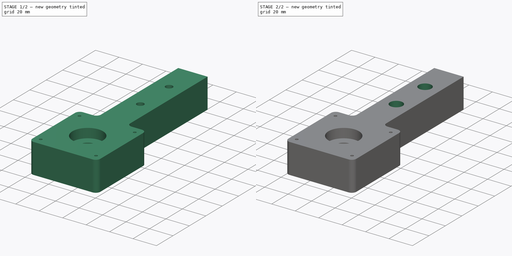
[diagram: build sequence overview — one tinted view per stage of 2, left to right]
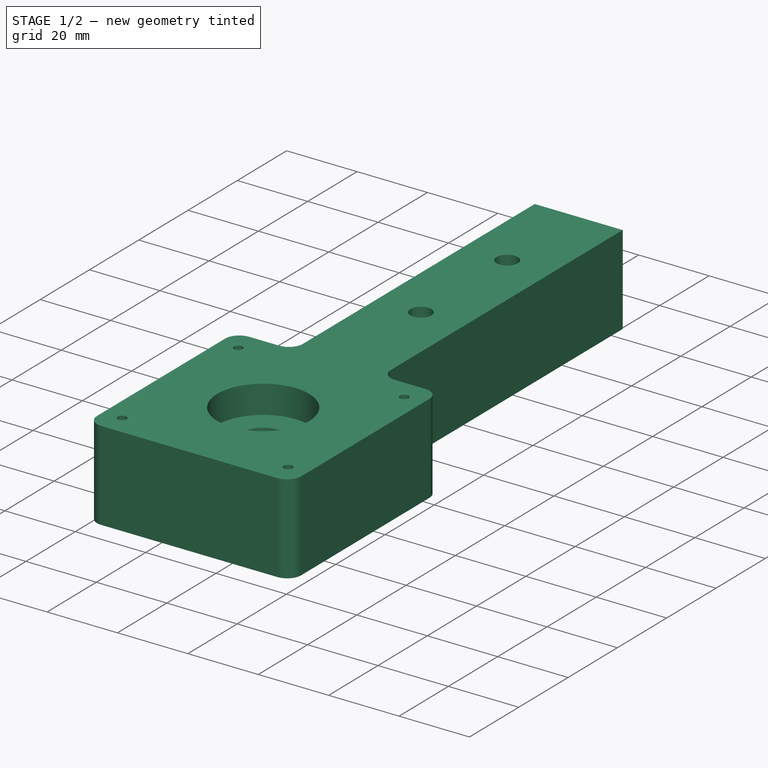
[diagram: stage 1 of 2 — iso view after this stage's code; geometry added in this stage tinted green]
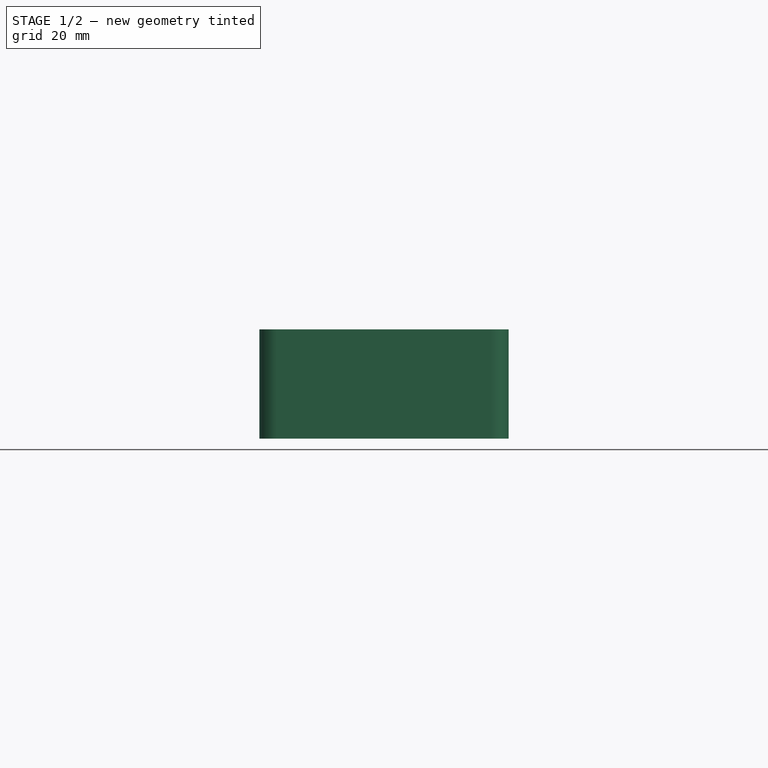
[diagram: stage 1 of 2 — front view after this stage's code; geometry added in this stage tinted green]
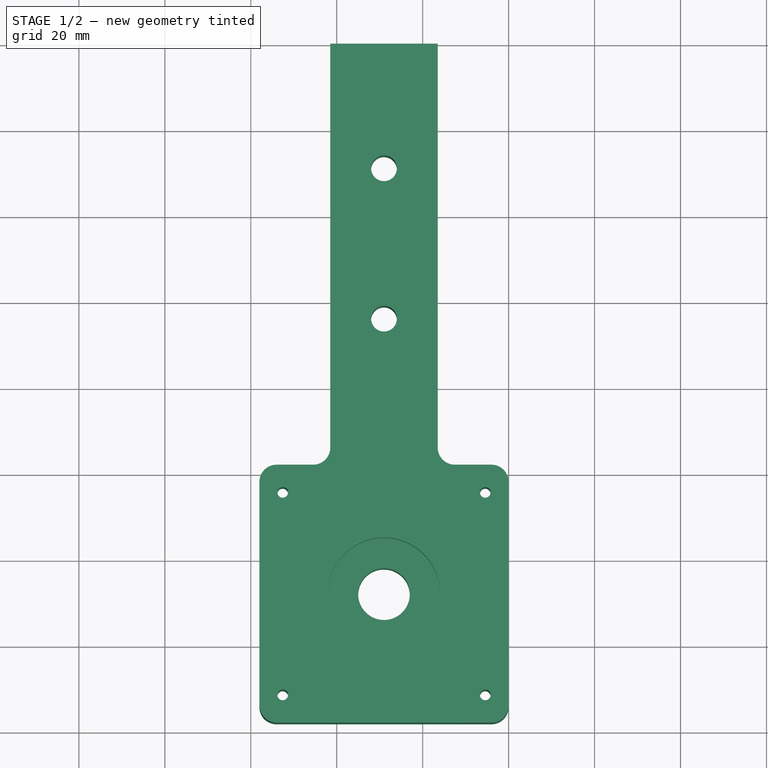
[diagram: stage 1 of 2 — top view after this stage's code; geometry added in this stage tinted green]
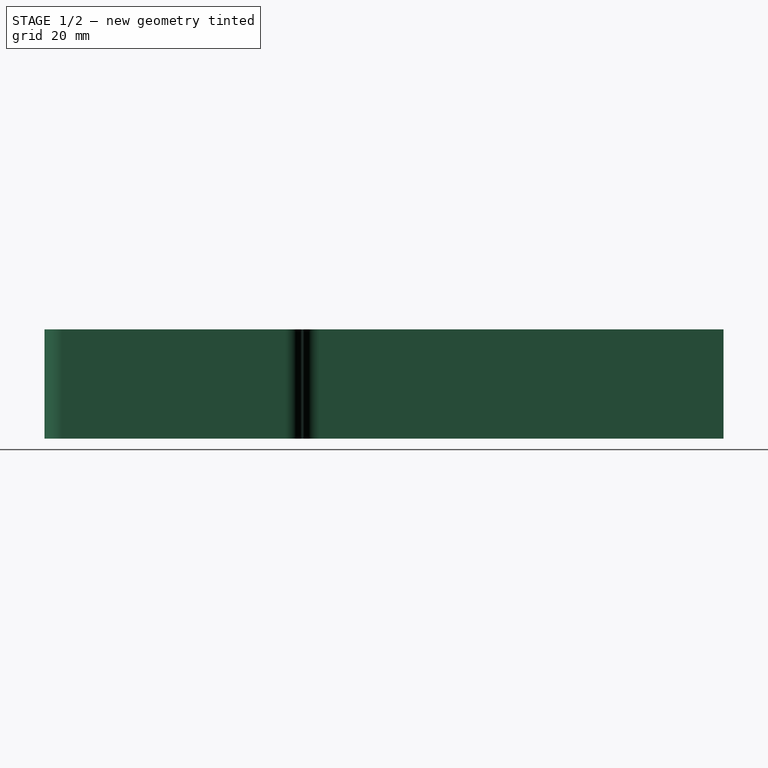
[diagram: stage 1 of 2 — right view after this stage's code; geometry added in this stage tinted green]
FCSTD DOCUMENT  (FreeCAD 0.16R5667 (Git))
Label: Z-Axis-SM-mount
License: CreativeCommons Attribution-ShareAlike
LicenseURL: http://creativecommons.org/licenses/by-sa/4.0/
objects: Sketcher::SketchObject×4, PartDesign::Pocket×3, PartDesign::Pad×1
note: 12 computed .brp shape members not serialized (recipe doc carries the construction recipe); baked Part::Feature solids carry a one-line shape summary decoded from their .brp

FEATURE [Sketcher::SketchObject] Sketch002  label="Base outline"
  Placement = pos=(0,0,0) rot=(1,0,0;3.14159rad)
  sketch-geometry (23):
    g0: Circle CenterX=-29 CenterY=128 CenterZ=0 NormalX=0 NormalY=0 NormalZ=1 Radius=6
    g1: Circle CenterX=-29 CenterY=64 CenterZ=0 NormalX=0 NormalY=0 NormalZ=1 Radius=3
    g2: Circle CenterX=-29 CenterY=29 CenterZ=0 NormalX=0 NormalY=0 NormalZ=1 Radius=3
    g3: LineSegment [constr] StartX=-29 StartY=158 StartZ=0 EndX=-29 EndY=0 EndZ=0
    g4: Circle CenterX=-5.43 CenterY=151.57 CenterZ=0 NormalX=0 NormalY=0 NormalZ=1 Radius=1.25
    g5: Circle CenterX=-52.57 CenterY=151.57 CenterZ=0 NormalX=0 NormalY=0 NormalZ=1 Radius=1.25
    g6: Circle CenterX=-52.57 CenterY=104.43 CenterZ=0 NormalX=0 NormalY=0 NormalZ=1 Radius=1.25
    g7: Circle CenterX=-5.43 CenterY=104.43 CenterZ=0 NormalX=0 NormalY=0 NormalZ=1 Radius=1.25
    g8: LineSegment [constr] StartX=-58 StartY=128 StartZ=0 EndX=0 EndY=128 EndZ=0
    g9: LineSegment StartX=-16.5 StartY=0 StartZ=0 EndX=-41.5 EndY=0 EndZ=0
    g10: LineSegment StartX=-41.5 StartY=0 StartZ=0 EndX=-41.5 EndY=94.0001 EndZ=0
    g11: LineSegment StartX=-16.5 StartY=93.9999 StartZ=0 EndX=-16.5 EndY=0 EndZ=0
    g12: ArcOfCircle CenterX=-54 CenterY=102 CenterZ=0 NormalX=0 NormalY=0 NormalZ=1 Radius=4 StartAngle=3.14159 EndAngle=4.71239
    g13: ArcOfCircle CenterX=-54 CenterY=154 CenterZ=0 NormalX=0 NormalY=0 NormalZ=1 Radius=4 StartAngle=1.5708 EndAngle=3.14159
    g14: LineSegment StartX=-58 StartY=154 StartZ=0 EndX=-58 EndY=102 EndZ=0
    g15: LineSegment StartX=-54 StartY=158 StartZ=0 EndX=-4.00002 EndY=158 EndZ=0
    g16: ArcOfCircle CenterX=-4 CenterY=154 CenterZ=0 NormalX=0 NormalY=0 NormalZ=1 Radius=4 StartAngle=6.28319 EndAngle=7.85399
    g17: ArcOfCircle CenterX=-4 CenterY=102 CenterZ=0 NormalX=0 NormalY=0 NormalZ=1 Radius=4 StartAngle=4.71239 EndAngle=6.28319
    g18: LineSegment StartX=0 StartY=154 StartZ=0 EndX=0 EndY=102 EndZ=0
    g19: ArcOfCircle CenterX=-45.5 CenterY=94.0001 CenterZ=0 NormalX=0 NormalY=0 NormalZ=1 Radius=4 StartAngle=2.50617e-07 EndAngle=1.5708
    g20: LineSegment StartX=-54 StartY=98.0001 StartZ=0 EndX=-45.5 EndY=98.0001 EndZ=0
    g21: ArcOfCircle CenterX=-12.5 CenterY=93.9999 CenterZ=0 NormalX=0 NormalY=0 NormalZ=1 Radius=4 StartAngle=1.5708 EndAngle=3.14159
    g22: LineSegment StartX=-12.5 StartY=97.9999 StartZ=0 EndX=-4.00002 EndY=97.9999 EndZ=0
  constraints (71):
    c: DistanceY(g-1,g0) = 128
    c: Radius(g0) = 6
    c: Vertical(g3)
    c: PointOnObject(g3,g-1)
    c: DistanceY(g3) = -158
    c: DistanceX(g-1,g3) = -29
    c: PointOnObject(g1,g3)
    c: PointOnObject(g0,g3)
    c: PointOnObject(g2,g3)
    c: Equal(g1,g2)
    c: Radius(g1) = 3
    c: DistanceY(g2,g1) = 35
    c: DistanceY(g2) = 29
    c: Symmetric(g4,g5,g3)
    c: Symmetric(g7,g6,g3)
    c: Equal(g4,g5)
    c: Equal(g5,g6)
    c: Equal(g6,g7)
    c: Radius(g5) = 1.25
    c: PointOnObject(g8,g-2)
    c: PointOnObject(g0,g8)
    c: DistanceX(g8) = 58
    c: Symmetric(g5,g6,g8)
    c: DistanceX(g6,g7) = 47.14
    c: DistanceY(g7,g4) = 47.14
    c: Coincident(g9,g10)
    c: Coincident(g9,g11)
    c: Vertical(g11)
    c: Vertical(g10)
    c: Horizontal(g9)
    c: Symmetric(g9,g9,g3)
    c: DistanceX(g9,g9) = 25
    c: Vertical(g14)
    c: Coincident(g14,g13)
    c: Tangent(g14,g13)
    c: Coincident(g12,g14)
    c: Tangent(g12,g14)
    c: Coincident(g13,g15)
    c: Tangent(g13,g15)
    c: Equal(g12,g13)
    c: Radius(g12) = 4
    c: Coincident(g15,g16)
    c: Tangent(g15,g16)
    c: Vertical(g18)
    c: Coincident(g18,g16)
    c: Tangent(g16,g18)
    c: Coincident(g17,g18)
    c: Tangent(g17,g18)
    c: PointOnObject(g8,g18)
    c: PointOnObject(g3,g15)
    c: Equal(g13,g16)
    c: Equal(g16,g17)
    c: PointOnObject(g8,g14)
    c: Symmetric(g12,g13,g8)
    c: Symmetric(g17,g15,g8)
    c: Coincident(g10,g19)
    c: Tangent(g19,g10)
    c: Horizontal(g20)
    c: Coincident(g20,g19)
    c: Coincident(g20,g12)
    c: Tangent(g20,g19)
    c: Tangent(g12,g20)
    c: Equal(g12,g19)
    c: Coincident(g11,g21)
    c: Tangent(g11,g21)
    c: Horizontal(g22)
    c: Coincident(g17,g22)
    c: Coincident(g21,g22)
    c: Tangent(g21,g22)
    c: Equal(g21,g19)
    c: Tangent(g22,g17)
FEATURE [PartDesign::Pad] Pad
  Length = 25.4
  Length2 = 100
  Placement = pos=(0,0,0) rot=(1,0,0;3.14159rad)
  Sketch = -> Sketch002
  Type = 0
FEATURE [Sketcher::SketchObject] Sketch
  Support = -> Pad [Face22]
  sketch-geometry (1):
    g0: Circle CenterX=-29 CenterY=-128 CenterZ=0 NormalX=0 NormalY=0 NormalZ=1 Radius=13.05
  constraints (3):
    c: Radius(g0) = 13.05
    c: DistanceY(g-1,g0) = -128
    c: DistanceX(g-1,g0) = -29
FEATURE [PartDesign::Pocket] Pocket
  Length = 8
  Placement = pos=(0,0,0) rot=(1,0,0;3.14159rad)
  Sketch = -> Sketch
  Type = 0
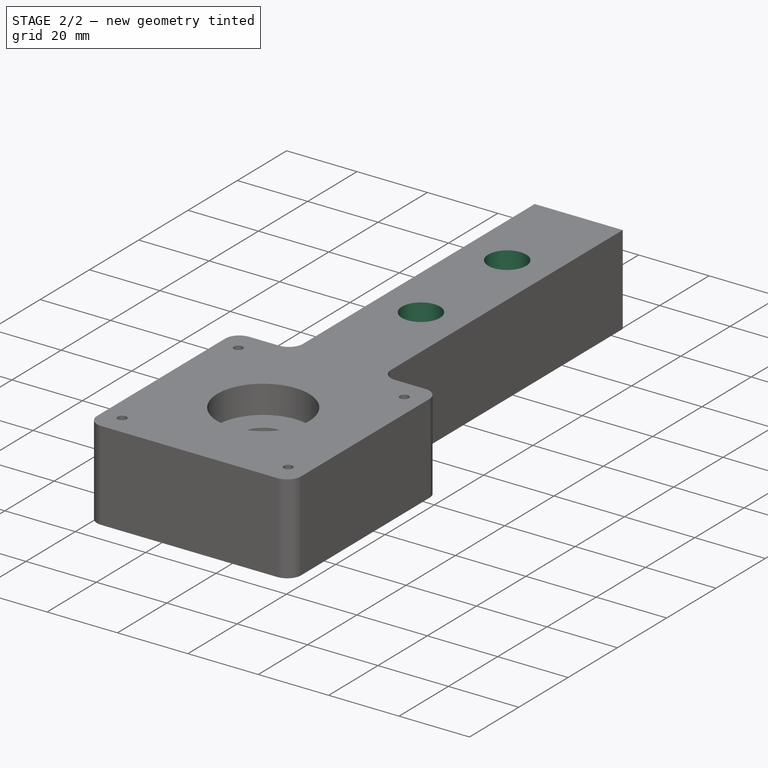
[diagram: stage 2 of 2 — iso view after this stage's code; geometry added in this stage tinted green]
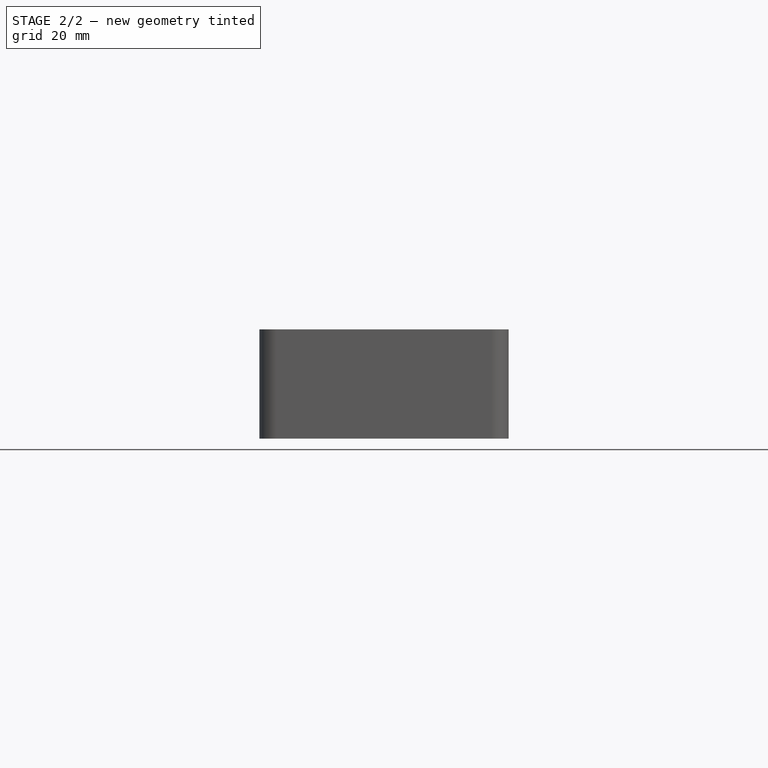
[diagram: stage 2 of 2 — front view after this stage's code; geometry added in this stage tinted green]
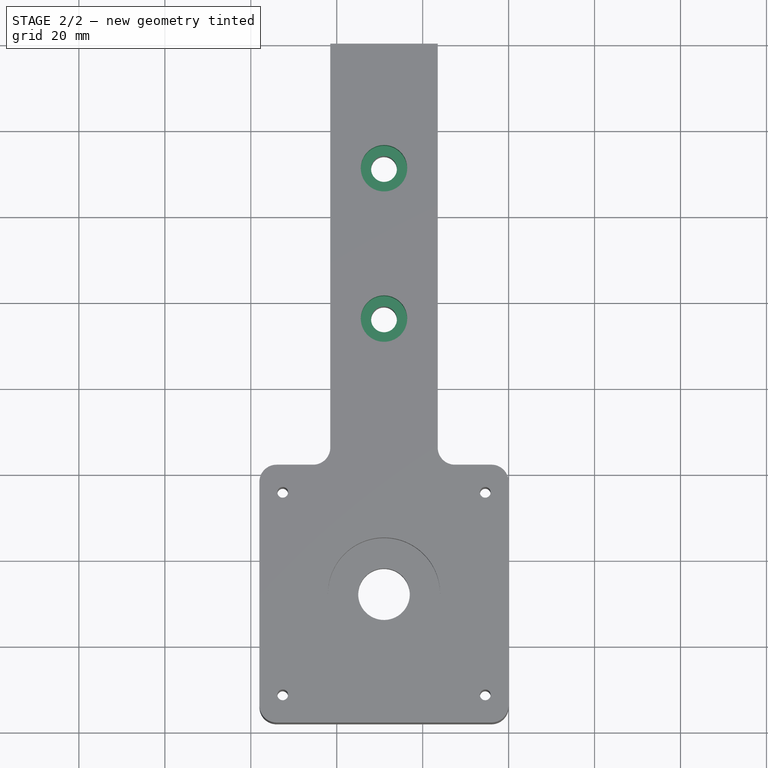
[diagram: stage 2 of 2 — top view after this stage's code; geometry added in this stage tinted green]
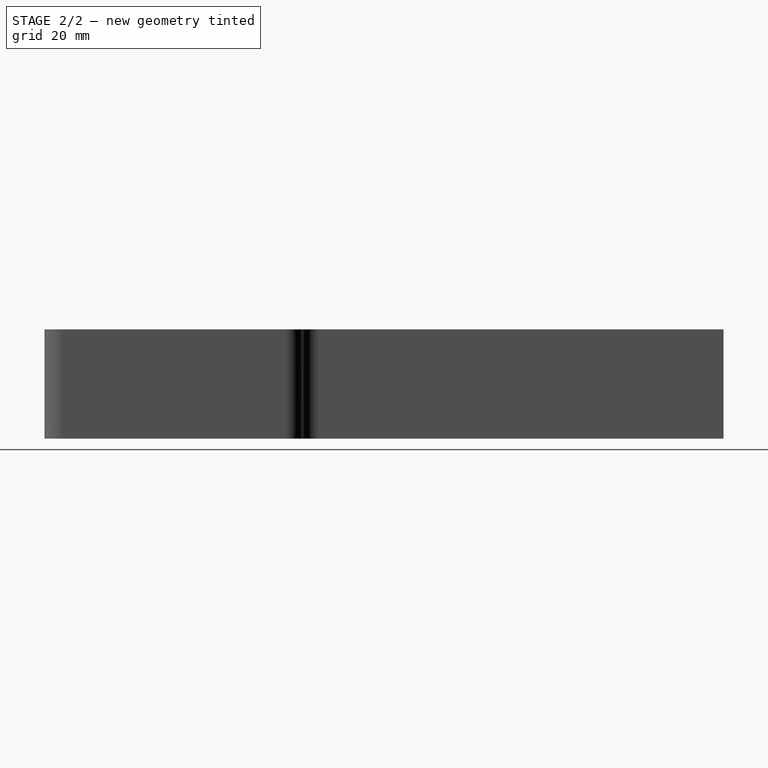
[diagram: stage 2 of 2 — right view after this stage's code; geometry added in this stage tinted green]
FEATURE [Sketcher::SketchObject] Sketch003
  Placement = pos=(0,0,-25.4) rot=(1,0,0;3.14159rad)
  Support = -> Pocket [Face5]
  sketch-geometry (1):
    g0: Circle CenterX=-29 CenterY=128 CenterZ=0 NormalX=0 NormalY=0 NormalZ=1 Radius=13.05
  constraints (3):
    c: DistanceY(g-1,g0) = 128
    c: DistanceX(g-1,g0) = -29
    c: Radius(g0) = 13.05
FEATURE [PartDesign::Pocket] Pocket001
  Length = 8
  Placement = pos=(0,0,0) rot=(1,0,0;3.14159rad)
  Sketch = -> Sketch003
  Type = 0
FEATURE [Sketcher::SketchObject] Sketch004
  Support = -> Pocket001 [Face4]
  sketch-geometry (2):
    g0: Circle CenterX=-29 CenterY=-29 CenterZ=0 NormalX=0 NormalY=0 NormalZ=1 Radius=5.4
    g1: Circle CenterX=-29 CenterY=-64 CenterZ=0 NormalX=0 NormalY=0 NormalZ=1 Radius=5.4
  constraints (6):
    c: Equal(g0,g1)
    c: Radius(g0) = 5.4
    c: DistanceY(g-1,g0) = -29
    c: DistanceY(g1,g0) = 35
    c: DistanceX(g-1,g0) = -29
    c: DistanceX(g-1,g1) = -29
FEATURE [PartDesign::Pocket] Pocket002
  Length = 10
  Placement = pos=(0,0,0) rot=(1,0,0;3.14159rad)
  Sketch = -> Sketch004
  Type = 0
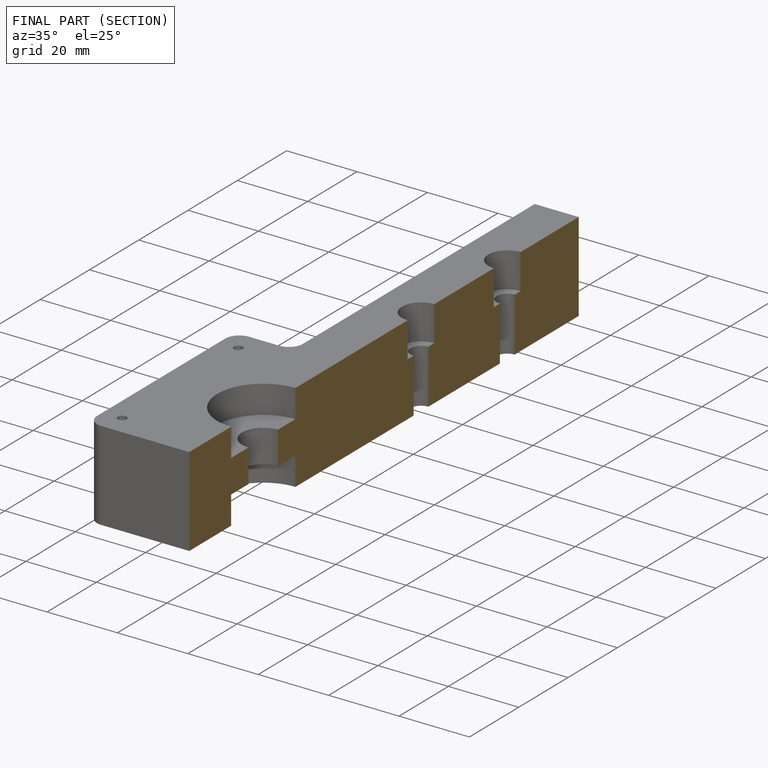
[diagram: finished part — half-section view (interior)]
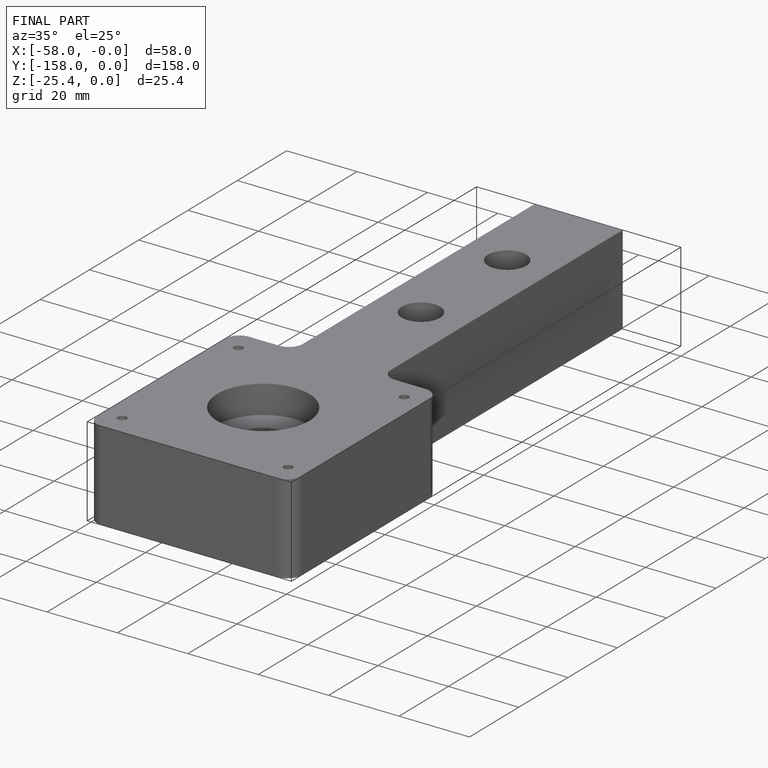
[diagram: finished part — iso view with bounding-box wireframe]
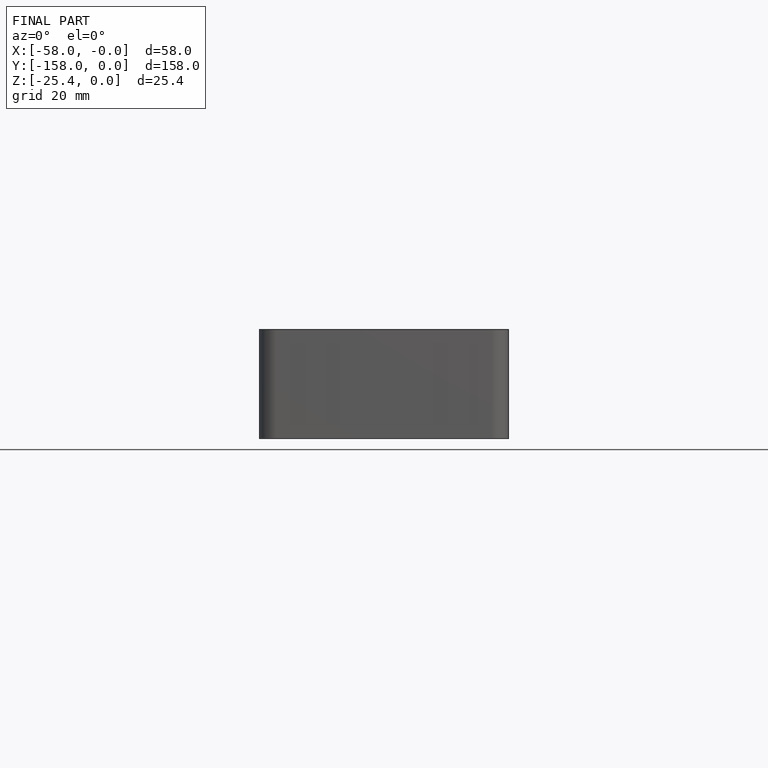
[diagram: finished part — front view with bounding-box wireframe]
